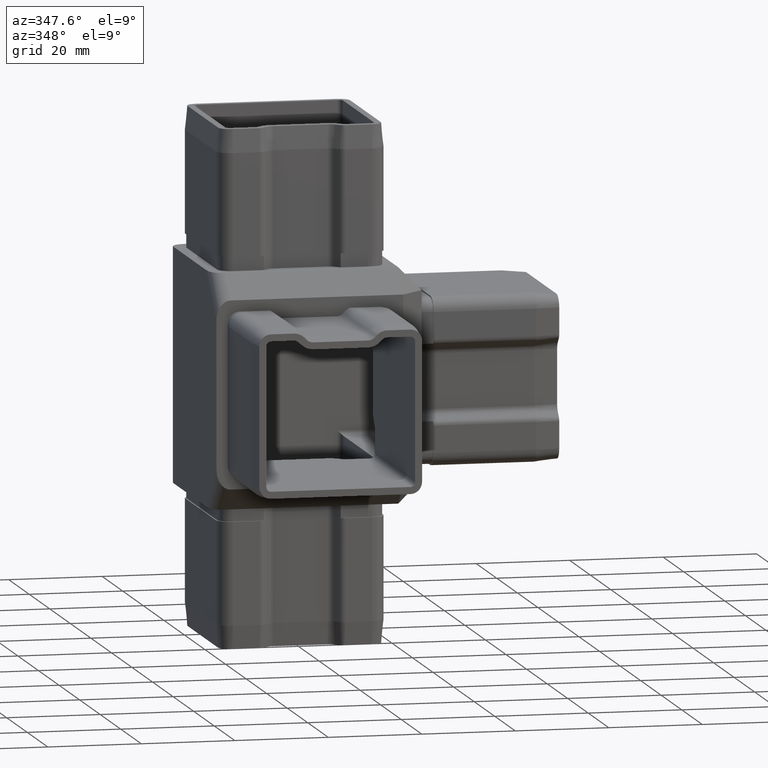
[diagram: clean part render]
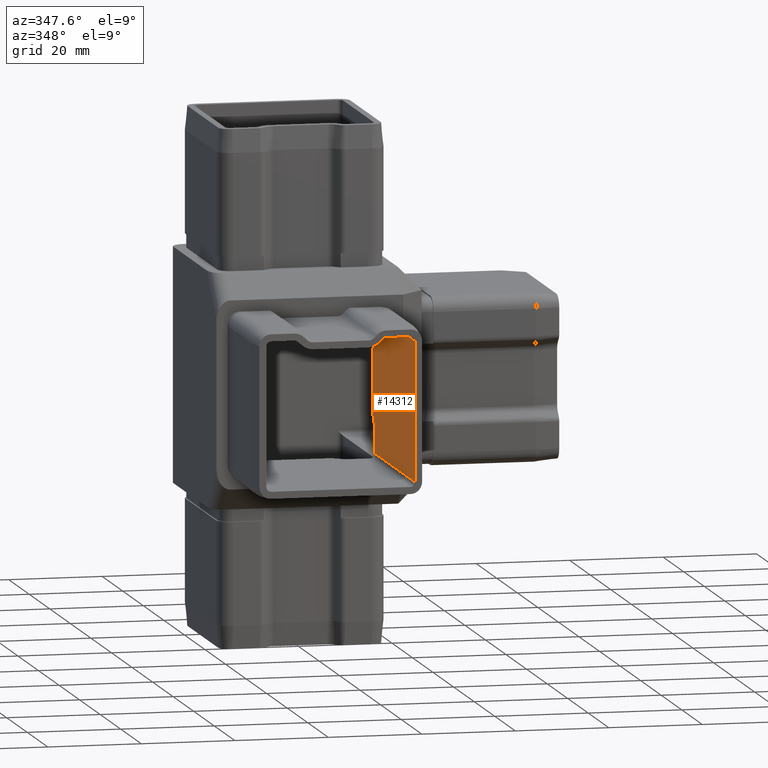
[diagram: same view with one face highlighted and labeled with its STEP entity id]
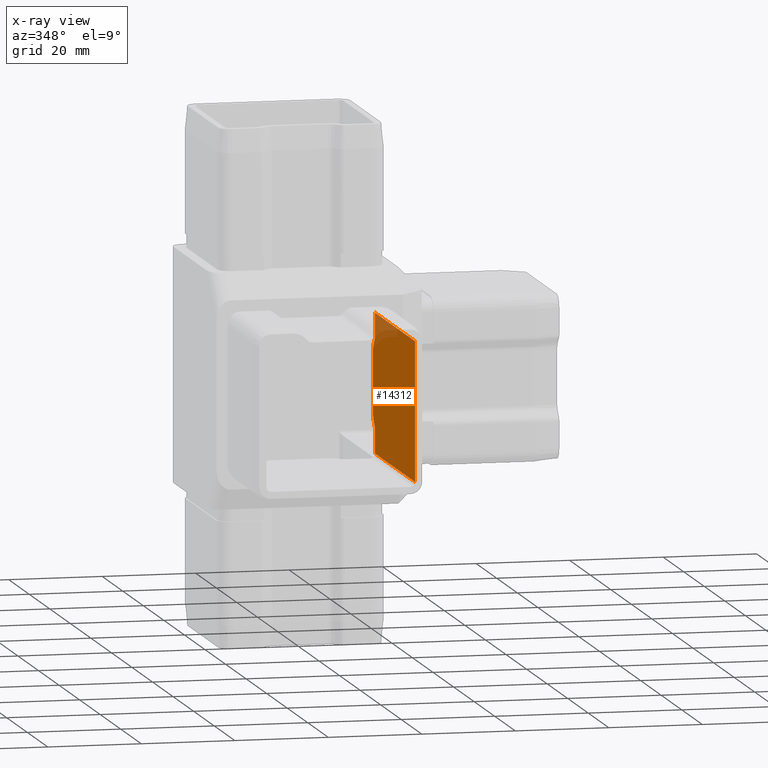
[diagram: x-ray of the same camera — body ghosted, the highlighted face saturated]
A machine part, auxiliary view. The second image highlights one B-rep face of the part: STEP entity #14312.
The next image is the same camera in x-ray: the body ghosted, the highlighted face saturated — about 7% of this face is hidden behind the body in this view.
In plain terms, the highlighted planar face has unit normal (-1, 0, -0).
Its self-contained STEP definition (entity closure, byte-faithful):
#189 = DIRECTION ( 'NONE',  ( 0.0000000000000000000, 1.156482317317873100E-015, 1.000000000000000000 ) ) ;
#196 = EDGE_CURVE ( 'NONE', #14240, #16501, #4858, .T. ) ;
#742 = AXIS2_PLACEMENT_3D ( 'NONE', #6979, #978, #16045 ) ;
#978 = DIRECTION ( 'NONE',  ( -1.000000000000000000, -0.0000000000000000000, -0.0000000000000000000 ) ) ;
#1019 = EDGE_LOOP ( 'NONE', ( #13792, #3244, #15054, #7136, #4068, #8300, #9975, #15523, #2003, #13824, #11410, #18481 ) ) ;
#1271 = CARTESIAN_POINT ( 'NONE',  ( 13.40000000000000200, -13.39999999999997700, 14.89999999999999500 ) ) ;
#1520 = DIRECTION ( 'NONE',  ( 1.000000000000000000, 0.0000000000000000000, 0.0000000000000000000 ) ) ;
#1846 = VECTOR ( 'NONE', #7673, 1000.000000000000100 ) ;
#1992 = CARTESIAN_POINT ( 'NONE',  ( 13.40000000000000200, -13.39999999999997400, -9.949747468305814000 ) ) ;
#2003 = ORIENTED_EDGE ( 'NONE', *, *, #7151, .T. ) ;
#2156 = LINE ( 'NONE', #1992, #15846 ) ;
#2356 = VERTEX_POINT ( 'NONE', #18261 ) ;
#3128 = CARTESIAN_POINT ( 'NONE',  ( 13.40000000000000200, -13.39999999999997400, -9.949747468305814000 ) ) ;
#3179 = CIRCLE ( 'NONE', #14578, 3.500000000000001300 ) ;
#3244 = ORIENTED_EDGE ( 'NONE', *, *, #15240, .T. ) ;
#3477 = EDGE_CURVE ( 'NONE', #13739, #9909, #12446, .T. ) ;
#3510 = CARTESIAN_POINT ( 'NONE',  ( 13.40000000000000200, -11.39999999999997400, -5.878679656440365200 ) ) ;
#3531 = CARTESIAN_POINT ( 'NONE',  ( 13.40000000000000200, -13.39999999999997400, -14.89999999999999300 ) ) ;
#3879 = VECTOR ( 'NONE', #3900, 1000.000000000000000 ) ;
#3900 = DIRECTION ( 'NONE',  ( 0.0000000000000000000, -1.000000000000000000, 5.782411586589356200E-017 ) ) ;
#3965 = CARTESIAN_POINT ( 'NONE',  ( 13.39999999999999900, -11.39999999999997900, 5.878679656440334100 ) ) ;
#4068 = ORIENTED_EDGE ( 'NONE', *, *, #8098, .T. ) ;
#4312 = EDGE_CURVE ( 'NONE', #13739, #18518, #18351, .T. ) ;
#4322 = DIRECTION ( 'NONE',  ( 0.0000000000000000000, -2.312964634635746200E-015, 1.000000000000000000 ) ) ;
#4485 = EDGE_CURVE ( 'NONE', #16703, #14895, #3179, .T. ) ;
#4858 = LINE ( 'NONE', #16434, #16683 ) ;
#5090 = CARTESIAN_POINT ( 'NONE',  ( 13.40000000000000200, -12.96066017177979300, -8.889087296525989500 ) ) ;
#5337 = VERTEX_POINT ( 'NONE', #5090 ) ;
#5365 = CARTESIAN_POINT ( 'NONE',  ( 13.40000000000000200, 17.53599564173222800, -15.03599564173221900 ) ) ;
#5407 = DIRECTION ( 'NONE',  ( -1.000000000000000000, -0.0000000000000000000, -0.0000000000000000000 ) ) ;
#5950 = CARTESIAN_POINT ( 'NONE',  ( 13.40000000000000200, -12.42512626584707100, -8.353553390593294400 ) ) ;
#6138 = DIRECTION ( 'NONE',  ( 1.000000000000000000, 0.0000000000000000000, 0.0000000000000000000 ) ) ;
#6826 = DIRECTION ( 'NONE',  ( -1.000000000000000000, 0.0000000000000000000, -0.0000000000000000000 ) ) ;
#6979 = CARTESIAN_POINT ( 'NONE',  ( 13.39999999999999900, -14.89999999999997700, 5.878679656440356300 ) ) ;
#6995 = LINE ( 'NONE', #5950, #1846 ) ;
#7136 = ORIENTED_EDGE ( 'NONE', *, *, #11330, .T. ) ;
#7151 = EDGE_CURVE ( 'NONE', #11005, #14240, #2156, .T. ) ;
#7226 = AXIS2_PLACEMENT_3D ( 'NONE', #14919, #6138, #4322 ) ;
#7422 = DIRECTION ( 'NONE',  ( 0.0000000000000000000, 0.0000000000000000000, -1.000000000000000000 ) ) ;
#7673 = DIRECTION ( 'NONE',  ( 0.0000000000000000000, -0.7071067811865646700, -0.7071067811865303600 ) ) ;
#8098 = EDGE_CURVE ( 'NONE', #14321, #16703, #15627, .T. ) ;
#8189 = CARTESIAN_POINT ( 'NONE',  ( 13.40000000000000200, -11.39999999999997900, 5.878679656440334100 ) ) ;
#8300 = ORIENTED_EDGE ( 'NONE', *, *, #4485, .T. ) ;
#8322 = DIRECTION ( 'NONE',  ( 0.0000000000000000000, 4.426308909543171300E-016, -1.000000000000000000 ) ) ;
#8352 = DIRECTION ( 'NONE',  ( -0.0000000000000000000, 0.0000000000000000000, 1.000000000000000000 ) ) ;
#8603 = CARTESIAN_POINT ( 'NONE',  ( 13.40000000000000200, -52.50000000000000700, 14.89999999999999100 ) ) ;
#8732 = VECTOR ( 'NONE', #12972, 1000.000000000000000 ) ;
#9326 = CARTESIAN_POINT ( 'NONE',  ( 13.40000000000000200, -12.96066017177979500, 8.889087296526000200 ) ) ;
#9901 = LINE ( 'NONE', #16138, #8732 ) ;
#9909 = VERTEX_POINT ( 'NONE', #8603 ) ;
#9975 = ORIENTED_EDGE ( 'NONE', *, *, #19411, .T. ) ;
#9986 = CARTESIAN_POINT ( 'NONE',  ( 13.40000000000000200, -12.39999999999997900, 14.89999999999999000 ) ) ;
#10626 = DIRECTION ( 'NONE',  ( 0.0000000000000000000, -1.000000000000000000, 5.782411586589356200E-017 ) ) ;
#10710 = EDGE_CURVE ( 'NONE', #14831, #2356, #9901, .T. ) ;
#10811 = CARTESIAN_POINT ( 'NONE',  ( 13.40000000000000200, -13.39999999999997700, 9.949747468305822900 ) ) ;
#10856 = CIRCLE ( 'NONE', #15653, 1.499999999999997800 ) ;
#10861 = CARTESIAN_POINT ( 'NONE',  ( 13.40000000000000200, -13.39999999999997700, 14.89999999999999000 ) ) ;
#11005 = VERTEX_POINT ( 'NONE', #3128 ) ;
#11330 = EDGE_CURVE ( 'NONE', #2356, #14321, #17976, .T. ) ;
#11410 = ORIENTED_EDGE ( 'NONE', *, *, #19335, .T. ) ;
#11883 = FACE_OUTER_BOUND ( 'NONE', #1019, .T. ) ;
#12011 = LINE ( 'NONE', #17738, #19604 ) ;
#12118 = VECTOR ( 'NONE', #8322, 1000.000000000000000 ) ;
#12165 = CARTESIAN_POINT ( 'NONE',  ( 13.40000000000000200, -11.89999999999997700, -9.949747468305814000 ) ) ;
#12320 = CARTESIAN_POINT ( 'NONE',  ( 13.39999999999999900, -12.42512626584706900, -8.353553390593294400 ) ) ;
#12446 = LINE ( 'NONE', #9986, #3879 ) ;
#12972 = DIRECTION ( 'NONE',  ( 0.0000000000000000000, 0.7071067811865487900, -0.7071067811865463500 ) ) ;
#13739 = VERTEX_POINT ( 'NONE', #10861 ) ;
#13792 = ORIENTED_EDGE ( 'NONE', *, *, #4312, .T. ) ;
#13824 = ORIENTED_EDGE ( 'NONE', *, *, #196, .T. ) ;
#14240 = VERTEX_POINT ( 'NONE', #3531 ) ;
#14312 = ADVANCED_FACE ( 'NONE', ( #11883 ), #19083, .T. ) ;
#14321 = VERTEX_POINT ( 'NONE', #3965 ) ;
#14578 = AXIS2_PLACEMENT_3D ( 'NONE', #17803, #5407, #19063 ) ;
#14831 = VERTEX_POINT ( 'NONE', #9326 ) ;
#14895 = VERTEX_POINT ( 'NONE', #12320 ) ;
#14919 = CARTESIAN_POINT ( 'NONE',  ( 13.40000000000000200, -11.89999999999998100, 9.949747468305822900 ) ) ;
#15054 = ORIENTED_EDGE ( 'NONE', *, *, #10710, .T. ) ;
#15240 = EDGE_CURVE ( 'NONE', #18518, #14831, #17540, .T. ) ;
#15523 = ORIENTED_EDGE ( 'NONE', *, *, #17922, .T. ) ;
#15627 = LINE ( 'NONE', #8189, #12118 ) ;
#15653 = AXIS2_PLACEMENT_3D ( 'NONE', #12165, #1520, #189 ) ;
#15846 = VECTOR ( 'NONE', #17179, 1000.000000000000000 ) ;
#16045 = DIRECTION ( 'NONE',  ( 0.0000000000000000000, 0.0000000000000000000, 1.000000000000000000 ) ) ;
#16138 = CARTESIAN_POINT ( 'NONE',  ( 13.40000000000000200, -12.96066017177979600, 8.889087296526001900 ) ) ;
#16434 = CARTESIAN_POINT ( 'NONE',  ( 13.40000000000000200, 17.40000000000000200, -14.89999999999999500 ) ) ;
#16455 = DIRECTION ( 'NONE',  ( 0.0000000000000000000, 0.0000000000000000000, 1.000000000000000000 ) ) ;
#16501 = VERTEX_POINT ( 'NONE', #17694 ) ;
#16683 = VECTOR ( 'NONE', #10626, 1000.000000000000000 ) ;
#16703 = VERTEX_POINT ( 'NONE', #3510 ) ;
#16913 = VECTOR ( 'NONE', #7422, 1000.000000000000000 ) ;
#17179 = DIRECTION ( 'NONE',  ( 0.0000000000000000000, 0.0000000000000000000, -1.000000000000000000 ) ) ;
#17504 = AXIS2_PLACEMENT_3D ( 'NONE', #5365, #6826, #8352 ) ;
#17540 = CIRCLE ( 'NONE', #7226, 1.499999999999997800 ) ;
#17694 = CARTESIAN_POINT ( 'NONE',  ( 13.40000000000000200, -52.50000000000000700, -14.89999999999999300 ) ) ;
#17738 = CARTESIAN_POINT ( 'NONE',  ( 13.40000000000000200, -52.50000000000000700, -14.89999999999999300 ) ) ;
#17803 = CARTESIAN_POINT ( 'NONE',  ( 13.39999999999999900, -14.89999999999997500, -5.878679656440365200 ) ) ;
#17922 = EDGE_CURVE ( 'NONE', #5337, #11005, #10856, .T. ) ;
#17976 = CIRCLE ( 'NONE', #742, 3.499999999999997800 ) ;
#18261 = CARTESIAN_POINT ( 'NONE',  ( 13.40000000000000200, -12.42512626584706400, 8.353553390593273100 ) ) ;
#18351 = LINE ( 'NONE', #1271, #16913 ) ;
#18481 = ORIENTED_EDGE ( 'NONE', *, *, #3477, .F. ) ;
#18518 = VERTEX_POINT ( 'NONE', #10811 ) ;
#19063 = DIRECTION ( 'NONE',  ( 0.0000000000000000000, 0.0000000000000000000, 1.000000000000000000 ) ) ;
#19083 = PLANE ( 'NONE',  #17504 ) ;
#19335 = EDGE_CURVE ( 'NONE', #16501, #9909, #12011, .T. ) ;
#19411 = EDGE_CURVE ( 'NONE', #14895, #5337, #6995, .T. ) ;
#19604 = VECTOR ( 'NONE', #16455, 1000.000000000000000 ) ;